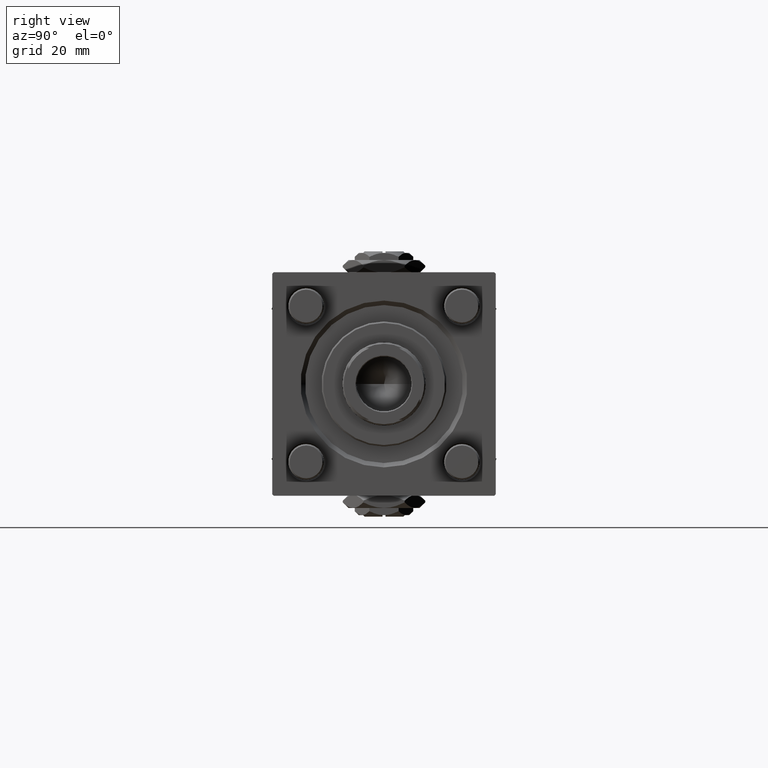
[diagram: clean part render]
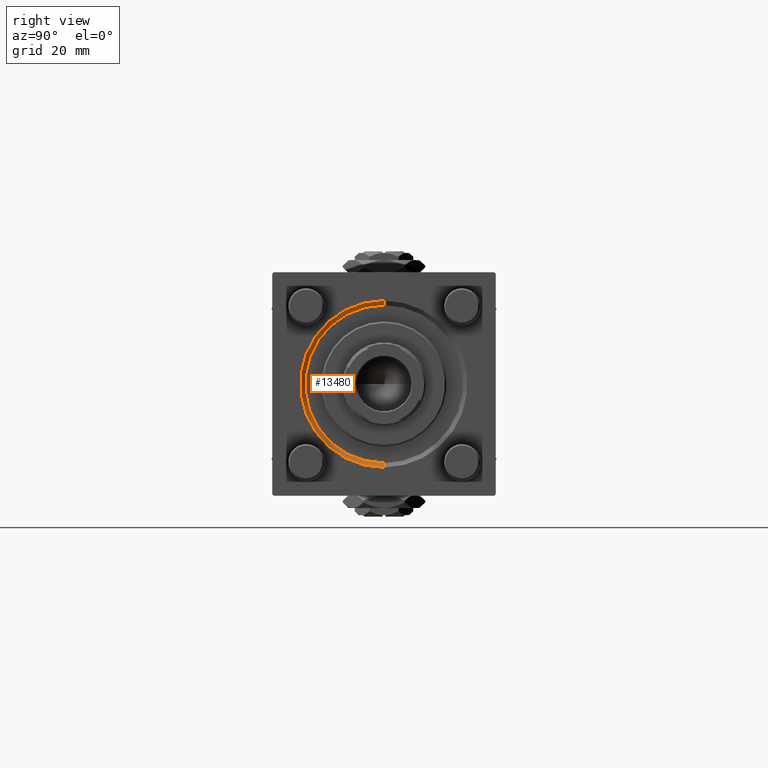
[diagram: same view with one face highlighted and labeled with its STEP entity id]
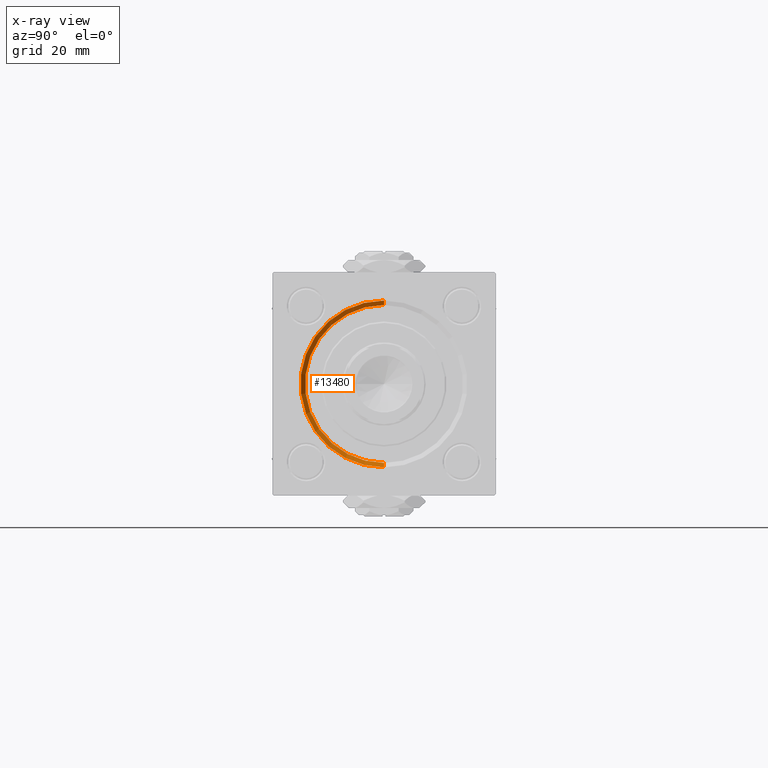
[diagram: x-ray of the same camera — body ghosted, the highlighted face saturated]
A machine part, right view. The second image highlights one B-rep face of the part: STEP entity #13480.
The next image is the same camera in x-ray: the body ghosted, the highlighted face saturated — about 0% of this face is hidden behind the body in this view.
In plain terms, the highlighted conical surface has half-angle 45 deg.
Its self-contained STEP definition (entity closure, byte-faithful):
#1653 = DIRECTION ( 'NONE',  ( 0.000000000000000000, 0.000000000000000000, -1.000000000000000000 ) ) ;
#1750 = DIRECTION ( 'NONE',  ( 0.7071067811865361374, 0.000000000000000000, -0.7071067811865588970 ) ) ;
#2588 = ORIENTED_EDGE ( 'NONE', *, *, #5806, .T. ) ;
#2962 = LINE ( 'NONE', #29418, #45295 ) ;
#3148 = CARTESIAN_POINT ( 'NONE',  ( 152.5000000000000568, 0.000000000000000000, 0.000000000000000000 ) ) ;
#4443 = VERTEX_POINT ( 'NONE', #21229 ) ;
#5549 = CARTESIAN_POINT ( 'NONE',  ( 154.0000000000000000, 0.000000000000000000, 0.000000000000000000 ) ) ;
#5806 = EDGE_CURVE ( 'NONE', #52235, #4443, #2962, .T. ) ;
#5848 = DIRECTION ( 'NONE',  ( -1.000000000000000000, -0.000000000000000000, 0.000000000000000000 ) ) ;
#6884 = EDGE_LOOP ( 'NONE', ( #19917, #2588, #57514, #54585 ) ) ;
#7615 = DIRECTION ( 'NONE',  ( 0.000000000000000000, 0.000000000000000000, 1.000000000000000000 ) ) ;
#11295 = AXIS2_PLACEMENT_3D ( 'NONE', #3148, #21287, #7615 ) ;
#12356 = EDGE_CURVE ( 'NONE', #15332, #4443, #18016, .T. ) ;
#13480 = ADVANCED_FACE ( 'NONE', ( #24257 ), #20006, .F. ) ;
#15332 = VERTEX_POINT ( 'NONE', #28439 ) ;
#18016 = CIRCLE ( 'NONE', #54033, 27.99999999999999645 ) ;
#18722 = CARTESIAN_POINT ( 'NONE',  ( 152.5000000000000568, 3.245314017740486554E-15, 26.50000000000000355 ) ) ;
#19917 = ORIENTED_EDGE ( 'NONE', *, *, #54631, .F. ) ;
#20006 = CONICAL_SURFACE ( 'NONE', #49380, 26.50000000000000355, 0.7853981633974644883 ) ;
#21229 = CARTESIAN_POINT ( 'NONE',  ( 154.0000000000000000, 3.429011037612588881E-15, 27.99999999999999645 ) ) ;
#21287 = DIRECTION ( 'NONE',  ( 1.000000000000000000, 0.000000000000000000, 0.000000000000000000 ) ) ;
#23997 = DIRECTION ( 'NONE',  ( 0.000000000000000000, 0.000000000000000000, 1.000000000000000000 ) ) ;
#24257 = FACE_OUTER_BOUND ( 'NONE', #6884, .T. ) ;
#28439 = CARTESIAN_POINT ( 'NONE',  ( 154.0000000000000000, 0.000000000000000000, -27.99999999999999645 ) ) ;
#29418 = CARTESIAN_POINT ( 'NONE',  ( 152.5000000000000568, 3.245314017740486554E-15, 26.50000000000000355 ) ) ;
#29681 = VERTEX_POINT ( 'NONE', #56864 ) ;
#31216 = CIRCLE ( 'NONE', #11295, 26.50000000000000355 ) ;
#31459 = EDGE_CURVE ( 'NONE', #29681, #15332, #51924, .T. ) ;
#38318 = DIRECTION ( 'NONE',  ( 0.7071067811865361374, 8.659560562355073374E-17, 0.7071067811865588970 ) ) ;
#45295 = VECTOR ( 'NONE', #38318, 1000.000000000000114 ) ;
#47085 = DIRECTION ( 'NONE',  ( 1.000000000000000000, 0.000000000000000000, 0.000000000000000000 ) ) ;
#47749 = CARTESIAN_POINT ( 'NONE',  ( 152.5000000000000568, 0.000000000000000000, -26.50000000000000355 ) ) ;
#49380 = AXIS2_PLACEMENT_3D ( 'NONE', #56004, #47085, #1653 ) ;
#51681 = VECTOR ( 'NONE', #1750, 1000.000000000000114 ) ;
#51924 = LINE ( 'NONE', #47749, #51681 ) ;
#52235 = VERTEX_POINT ( 'NONE', #18722 ) ;
#54033 = AXIS2_PLACEMENT_3D ( 'NONE', #5549, #5848, #23997 ) ;
#54585 = ORIENTED_EDGE ( 'NONE', *, *, #31459, .F. ) ;
#54631 = EDGE_CURVE ( 'NONE', #52235, #29681, #31216, .T. ) ;
#56004 = CARTESIAN_POINT ( 'NONE',  ( 152.5000000000000568, 0.000000000000000000, 0.000000000000000000 ) ) ;
#56864 = CARTESIAN_POINT ( 'NONE',  ( 152.5000000000000568, 0.000000000000000000, -26.50000000000000355 ) ) ;
#57514 = ORIENTED_EDGE ( 'NONE', *, *, #12356, .F. ) ;